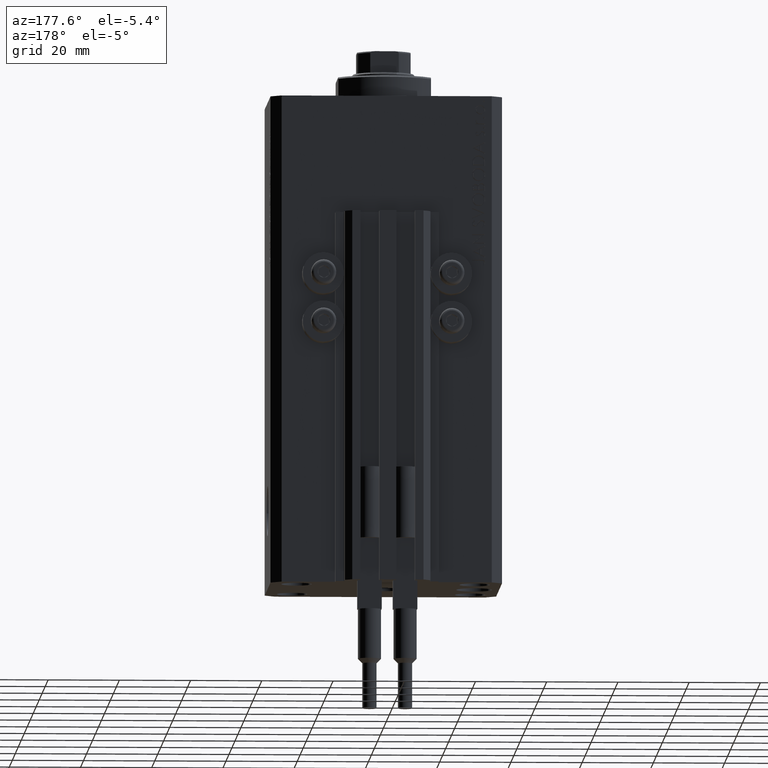
[diagram: clean part render]
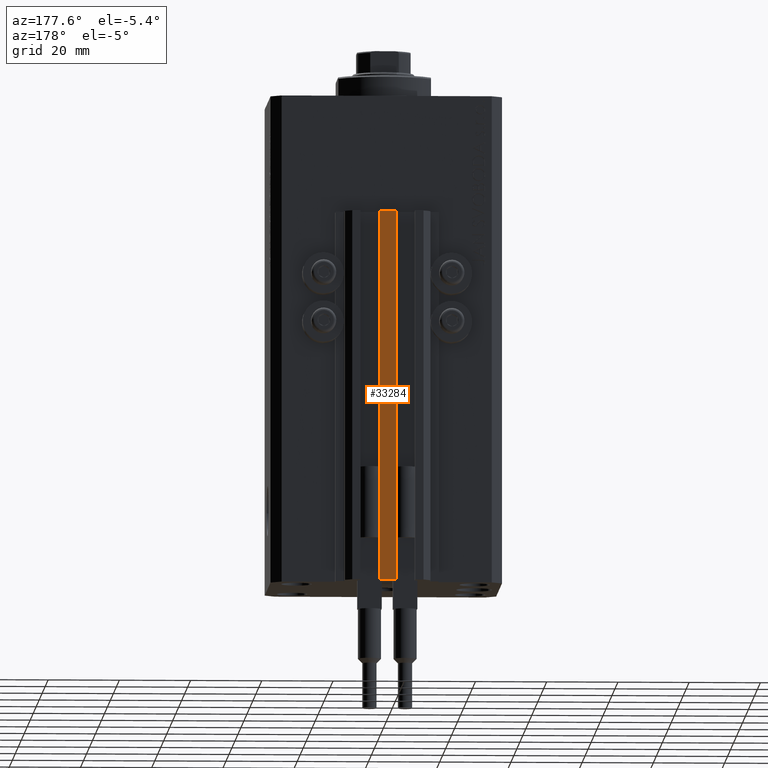
[diagram: same view with one face highlighted and labeled with its STEP entity id]
A machine part, auxiliary view. The second image highlights one B-rep face of the part: STEP entity #33284.
In plain terms, the highlighted planar face has unit normal (0, -1, 0).
Its self-contained STEP definition (entity closure, byte-faithful):
#436 = EDGE_CURVE ( 'NONE', #28487, #35975, #41257, .T. ) ;
#774 = EDGE_CURVE ( 'NONE', #28896, #35975, #12472, .T. ) ;
#1649 = EDGE_LOOP ( 'NONE', ( #23391, #3702, #39711, #40467 ) ) ;
#2245 = CARTESIAN_POINT ( 'NONE',  ( -2.350000000000003197, 30.49999999999949907, -33.00000000000000000 ) ) ;
#3702 = ORIENTED_EDGE ( 'NONE', *, *, #436, .F. ) ;
#6016 = DIRECTION ( 'NONE',  ( 0.000000000000000000, 0.000000000000000000, 1.000000000000000000 ) ) ;
#10620 = FACE_OUTER_BOUND ( 'NONE', #1649, .T. ) ;
#12472 = LINE ( 'NONE', #34129, #27047 ) ;
#14743 = CARTESIAN_POINT ( 'NONE',  ( 2.349999999999999645, 30.49999999999949907, -137.0000000000000000 ) ) ;
#17466 = DIRECTION ( 'NONE',  ( 0.000000000000000000, -0.000000000000000000, -1.000000000000000000 ) ) ;
#19924 = VERTEX_POINT ( 'NONE', #48136 ) ;
#21100 = PLANE ( 'NONE',  #24648 ) ;
#21559 = CARTESIAN_POINT ( 'NONE',  ( -2.350000000000003197, 30.49999999999949907, -137.0000000000000000 ) ) ;
#22204 = VECTOR ( 'NONE', #38487, 1000.000000000000000 ) ;
#23391 = ORIENTED_EDGE ( 'NONE', *, *, #774, .T. ) ;
#24648 = AXIS2_PLACEMENT_3D ( 'NONE', #35947, #32532, #17466 ) ;
#27047 = VECTOR ( 'NONE', #38513, 1000.000000000000000 ) ;
#27118 = EDGE_CURVE ( 'NONE', #19924, #28487, #38729, .T. ) ;
#28487 = VERTEX_POINT ( 'NONE', #29858 ) ;
#28896 = VERTEX_POINT ( 'NONE', #2245 ) ;
#29579 = DIRECTION ( 'NONE',  ( 0.000000000000000000, 0.000000000000000000, 1.000000000000000000 ) ) ;
#29858 = CARTESIAN_POINT ( 'NONE',  ( 2.349999999999999645, 30.49999999999949907, -137.0000000000000000 ) ) ;
#32390 = EDGE_CURVE ( 'NONE', #19924, #28896, #43500, .T. ) ;
#32491 = VECTOR ( 'NONE', #29579, 1000.000000000000000 ) ;
#32532 = DIRECTION ( 'NONE',  ( 0.000000000000000000, -1.000000000000000000, 0.000000000000000000 ) ) ;
#33284 = ADVANCED_FACE ( 'NONE', ( #10620 ), #21100, .F. ) ;
#34129 = CARTESIAN_POINT ( 'NONE',  ( -2.350000000000003197, 30.49999999999949907, -33.00000000000000000 ) ) ;
#35308 = CARTESIAN_POINT ( 'NONE',  ( 2.349999999999999645, 30.49999999999949907, -33.00000000000000000 ) ) ;
#35947 = CARTESIAN_POINT ( 'NONE',  ( -2.350000000000003197, 30.49999999999949907, -137.0000000000000000 ) ) ;
#35975 = VERTEX_POINT ( 'NONE', #35308 ) ;
#38487 = DIRECTION ( 'NONE',  ( 1.000000000000000000, 0.000000000000000000, 0.000000000000000000 ) ) ;
#38513 = DIRECTION ( 'NONE',  ( 1.000000000000000000, 0.000000000000000000, 0.000000000000000000 ) ) ;
#38729 = LINE ( 'NONE', #45553, #22204 ) ;
#39711 = ORIENTED_EDGE ( 'NONE', *, *, #27118, .F. ) ;
#40467 = ORIENTED_EDGE ( 'NONE', *, *, #32390, .T. ) ;
#40904 = VECTOR ( 'NONE', #6016, 1000.000000000000000 ) ;
#41257 = LINE ( 'NONE', #14743, #32491 ) ;
#43500 = LINE ( 'NONE', #21559, #40904 ) ;
#45553 = CARTESIAN_POINT ( 'NONE',  ( -2.350000000000003197, 30.49999999999949907, -137.0000000000000000 ) ) ;
#48136 = CARTESIAN_POINT ( 'NONE',  ( -2.350000000000003197, 30.49999999999949907, -137.0000000000000000 ) ) ;